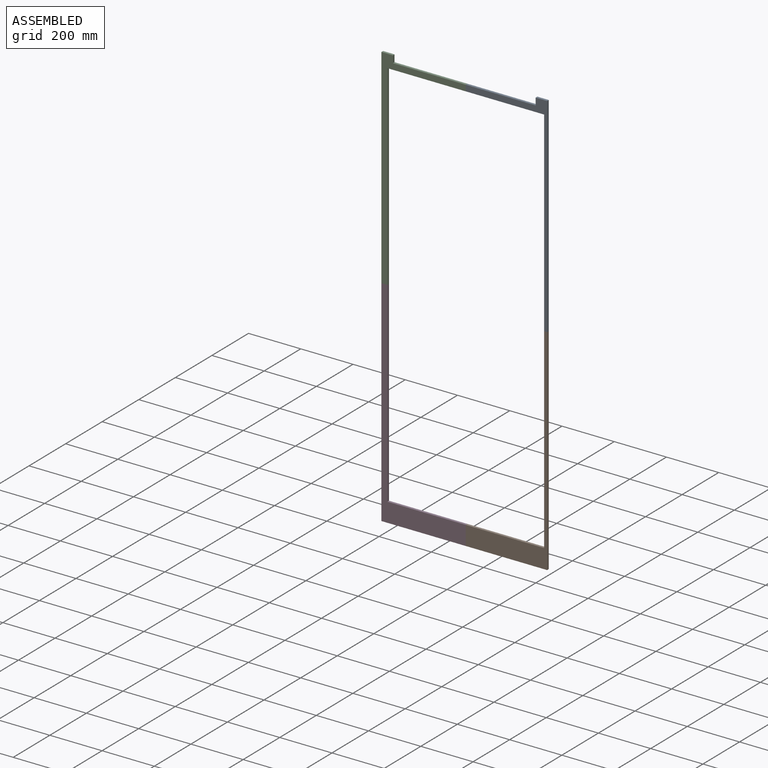
[diagram: assembled view]
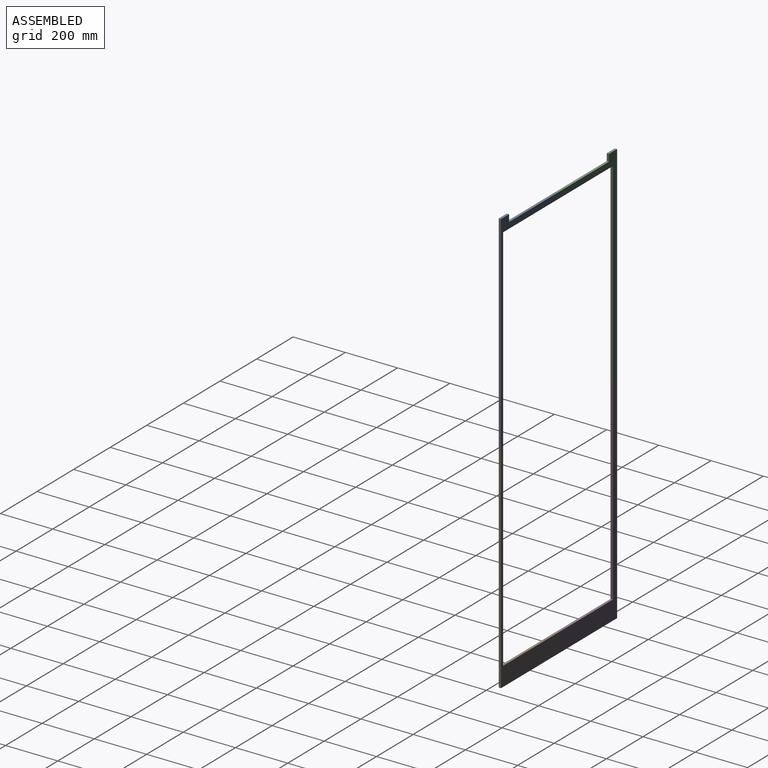
[diagram: assembled view, second angle]
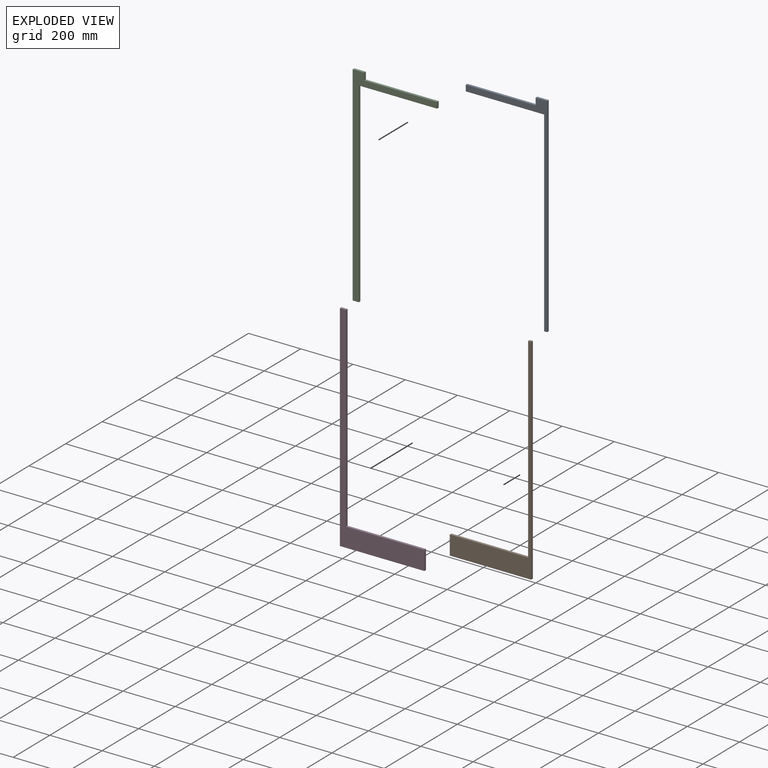
[diagram: exploded view]
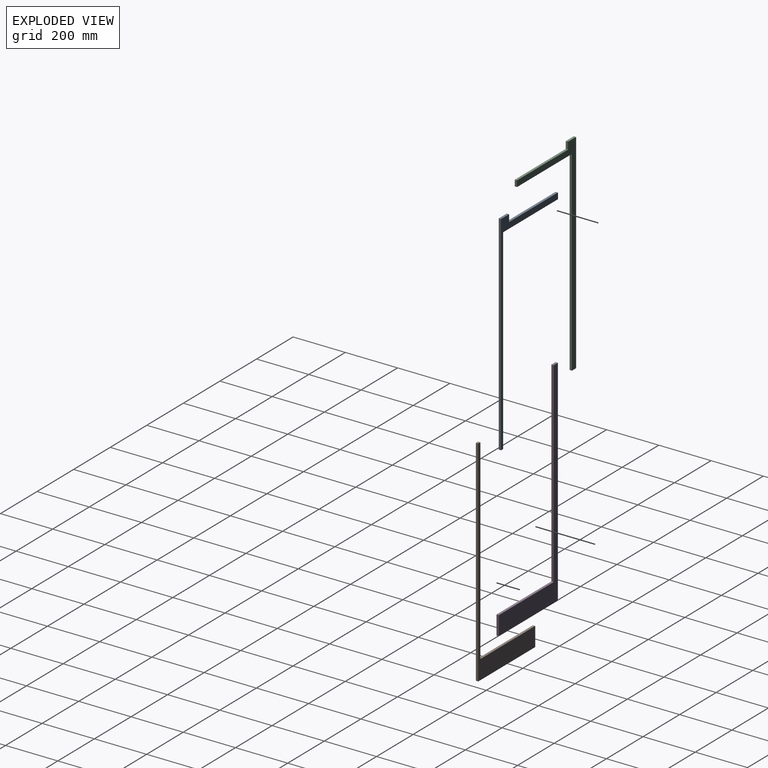
[diagram: exploded view, second angle]
ASSEMBLY  parts=4 mates=3
PART A: 10 faces, bbox 311.5x9x800 mm
  f0: plane 267.5x9mm, normal (0,0,1), area 2407.5mm2, adj f1,f7,f8,f9
  f1: plane 23x9mm, normal (-1,0,0), area 207mm2, adj f0,f2,f8,f9
  f2: plane 300x9mm, normal (0,0,-1), area 2700mm2, adj f1,f3,f8,f9
  f3: plane 750x9mm, normal (-1,0,0), area 6750mm2, adj f2,f4,f8,f9
  f4: plane 11.5x9mm, normal (0,0,-1), area 103.5mm2, adj f3,f5,f8,f9
  f5: plane 800x9mm, normal (1,0,0), area 7200mm2, adj f4,f6,f8,f9
  f6: plane 44x9mm, normal (0,0,1), area 396mm2, adj f5,f7,f8,f9
  f7: plane 27x9mm, normal (-1,0,0), area 243mm2, adj f0,f6,f8,f9
  f8: plane 800x311.5mm, normal (0,-1,0), area 16977.5mm2, adj f0,f1,f2,f3,f4,f5,f6,f7
  f9: plane 800x311.5mm, normal (0,1,0), area 16977.5mm2, adj f0,f1,f2,f3,f4,f5,f6,f7
PART B: 8 faces, bbox 311.5x9x823 mm
  f0: plane 11.5x9mm, normal (0,0,1), area 103.5mm2, adj f1,f5,f6,f7
  f1: plane 750x9mm, normal (-1,0,0), area 6750mm2, adj f0,f2,f6,f7
  f2: plane 300x9mm, normal (0,0,1), area 2700mm2, adj f1,f3,f6,f7
  f3: plane 73x9mm, normal (-1,0,0), area 657mm2, adj f2,f4,f6,f7
  f4: plane 311.5x9mm, normal (0,0,-1), area 2803.5mm2, adj f3,f5,f6,f7
  f5: plane 823x9mm, normal (1,0,0), area 7407mm2, adj f0,f4,f6,f7
  f6: plane 823x311.5mm, normal (0,-1,0), area 31364.5mm2, adj f0,f1,f2,f3,f4,f5
  f7: plane 823x311.5mm, normal (0,1,0), area 31364.5mm2, adj f0,f1,f2,f3,f4,f5
PART C: 10 faces, bbox 323x9x800 mm
  f0: plane 44x9mm, normal (0,0,1), area 396mm2, adj f1,f7,f8,f9
  f1: plane 800x9mm, normal (-1,0,0), area 7200mm2, adj f0,f2,f8,f9
  f2: plane 23x9mm, normal (0,0,-1), area 207mm2, adj f1,f3,f8,f9
  f3: plane 750x9mm, normal (1,0,0), area 6750mm2, adj f2,f4,f8,f9
  f4: plane 300x9mm, normal (0,0,-1), area 2700mm2, adj f3,f5,f8,f9
  f5: plane 23x9mm, normal (1,0,0), area 207mm2, adj f4,f6,f8,f9
  f6: plane 279x9mm, normal (0,0,1), area 2511mm2, adj f5,f7,f8,f9
  f7: plane 27x9mm, normal (1,0,0), area 243mm2, adj f0,f6,f8,f9
  f8: plane 800x323mm, normal (0,-1,0), area 25867mm2, adj f0,f1,f2,f3,f4,f5,f6,f7
  f9: plane 800x323mm, normal (0,1,0), area 25867mm2, adj f0,f1,f2,f3,f4,f5,f6,f7
PART D: 8 faces, bbox 323x9x823 mm
  f0: plane 323x9mm, normal (0,0,-1), area 2907mm2, adj f1,f5,f6,f7
  f1: plane 73x9mm, normal (1,0,0), area 657mm2, adj f0,f2,f6,f7
  f2: plane 300x9mm, normal (0,0,1), area 2700mm2, adj f1,f3,f6,f7
  f3: plane 750x9mm, normal (1,0,0), area 6750mm2, adj f2,f4,f6,f7
  f4: plane 23x9mm, normal (0,0,1), area 207mm2, adj f3,f5,f6,f7
  f5: plane 823x9mm, normal (-1,0,0), area 7407mm2, adj f0,f4,f6,f7
  f6: plane 823x323mm, normal (0,-1,0), area 40829mm2, adj f0,f1,f2,f3,f4,f5
  f7: plane 823x323mm, normal (0,1,0), area 40829mm2, adj f0,f1,f2,f3,f4,f5
PLACE A t=(95.28,-138.62,742.46)mm
PLACE B t=(395.28,-138.62,-30.54)mm
PLACE C t=(-227.72,-138.62,769.46)mm
PLACE D t=(95.28,-138.62,-853.54)mm
MATE fastened C.f8 <-> A.f8  axis (0,-1,0) through (95.28,-147.62,730.96)mm
MATE fastened B.f6 <-> D.f6  axis (0,-1,0) through (95.28,-147.62,-853.54)mm
MATE fastened A.f8 <-> B.f6  axis (0,-1,0) through (401.03,-147.62,-30.54)mm
